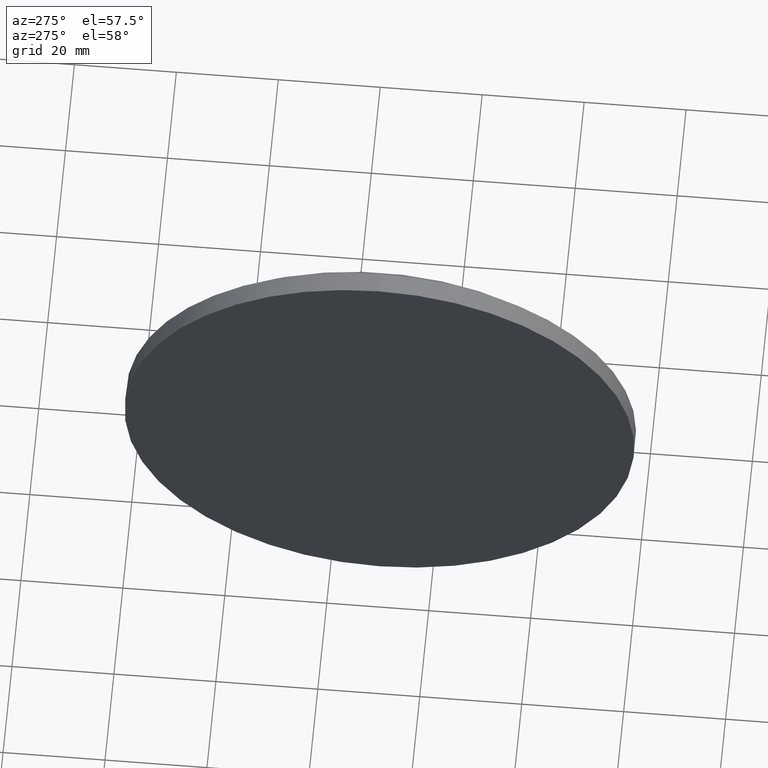
[diagram: clean part render]
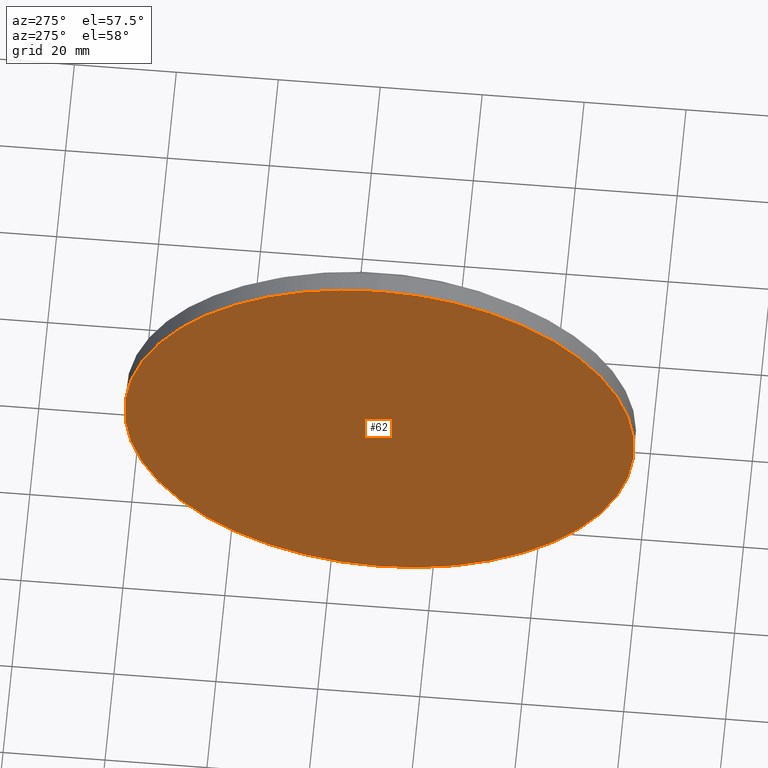
[diagram: same view with one face highlighted and labeled with its STEP entity id]
A machine part, auxiliary view. The second image highlights one B-rep face of the part: STEP entity #62.
In plain terms, the highlighted planar face has unit normal (1, 0, 0).
Its self-contained STEP definition (entity closure, byte-faithful):
#3 = ORIENTED_EDGE ( 'NONE', *, *, #22, .T. ) ;
#8 = VERTEX_POINT ( 'NONE', #71 ) ;
#19 = AXIS2_PLACEMENT_3D ( 'NONE', #154, #179, #45 ) ;
#22 = EDGE_CURVE ( 'NONE', #112, #8, #82, .T. ) ;
#24 = DIRECTION ( 'NONE',  ( -1.000000000000000000, -0.0000000000000000000, -0.0000000000000000000 ) ) ;
#43 = EDGE_CURVE ( 'NONE', #8, #112, #78, .T. ) ;
#45 = DIRECTION ( 'NONE',  ( 0.0000000000000000000, 0.0000000000000000000, -1.000000000000000000 ) ) ;
#52 = AXIS2_PLACEMENT_3D ( 'NONE', #93, #105, #151 ) ;
#62 = ADVANCED_FACE ( 'NONE', ( #131 ), #124, .F. ) ;
#67 = ORIENTED_EDGE ( 'NONE', *, *, #43, .T. ) ;
#71 = CARTESIAN_POINT ( 'NONE',  ( 608.0407957807756200, 50.38150423912338700, 49.99999999999999300 ) ) ;
#78 = CIRCLE ( 'NONE', #52, 49.99999999999999300 ) ;
#82 = CIRCLE ( 'NONE', #157, 49.99999999999999300 ) ;
#83 = CARTESIAN_POINT ( 'NONE',  ( 608.0407957807756200, 50.38150423912338700, 0.0000000000000000000 ) ) ;
#93 = CARTESIAN_POINT ( 'NONE',  ( 608.0407957807756200, 50.38150423912338700, 0.0000000000000000000 ) ) ;
#101 = EDGE_LOOP ( 'NONE', ( #67, #3 ) ) ;
#105 = DIRECTION ( 'NONE',  ( -1.000000000000000000, -0.0000000000000000000, -0.0000000000000000000 ) ) ;
#112 = VERTEX_POINT ( 'NONE', #118 ) ;
#118 = CARTESIAN_POINT ( 'NONE',  ( 608.0407957807756200, 50.38150423912339400, -49.99999999999999300 ) ) ;
#124 = PLANE ( 'NONE',  #19 ) ;
#131 = FACE_OUTER_BOUND ( 'NONE', #101, .T. ) ;
#137 = DIRECTION ( 'NONE',  ( 0.0000000000000000000, 0.0000000000000000000, 1.000000000000000000 ) ) ;
#151 = DIRECTION ( 'NONE',  ( 0.0000000000000000000, 0.0000000000000000000, 1.000000000000000000 ) ) ;
#154 = CARTESIAN_POINT ( 'NONE',  ( 608.0407957807756200, 50.38150423912338700, 0.0000000000000000000 ) ) ;
#157 = AXIS2_PLACEMENT_3D ( 'NONE', #83, #24, #137 ) ;
#179 = DIRECTION ( 'NONE',  ( 1.000000000000000000, 0.0000000000000000000, 0.0000000000000000000 ) ) ;